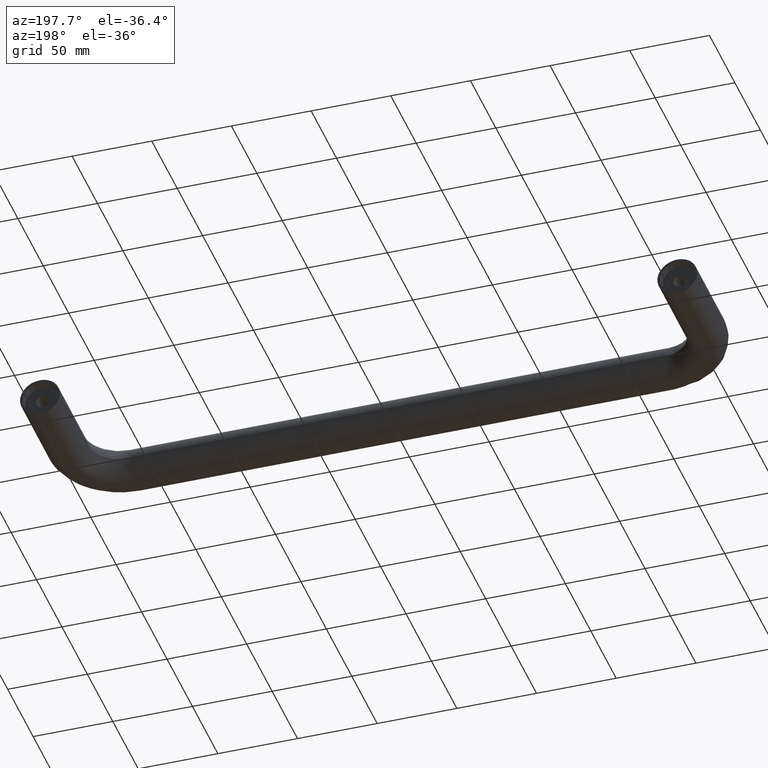
[diagram: clean part render]
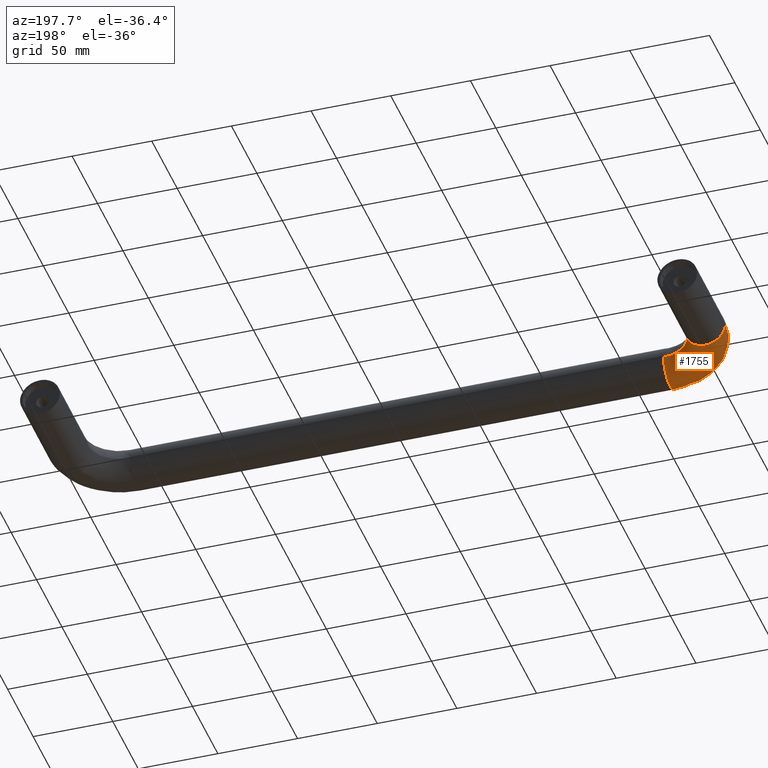
[diagram: same view with one face highlighted and labeled with its STEP entity id]
A machine part, auxiliary view. The second image highlights one B-rep face of the part: STEP entity #1755.
In plain terms, the highlighted face is a freeform B-spline surface patch.
Its self-contained STEP definition (entity closure, byte-faithful):
#1326=CARTESIAN_POINT('',(32.500032146005097,-99.999999999977035,-1.530758E-015));
#1327=VERTEX_POINT('',#1326);
#1341=CARTESIAN_POINT('',(32.500017053687827,-88.263108096102428,-12.476684897586050));
#1342=VERTEX_POINT('',#1341);
#1343=CARTESIAN_POINT('',(32.500032146005097,-99.999999999977035,-1.530758E-015));
#1344=CARTESIAN_POINT('',(32.500032146005104,-99.999999999977021,-11.758824559796043));
#1345=CARTESIAN_POINT('',(32.500017053686584,-88.263108096102414,-12.476684897585754));
#1353=(BOUNDED_CURVE()B_SPLINE_CURVE(2,(#1343,#1344,#1345),.UNSPECIFIED.,.F.,.U.)B_SPLINE_CURVE_WITH_KNOTS((3,3),(0.0,0.319110591393889),.UNSPECIFIED.)CURVE()GEOMETRIC_REPRESENTATION_ITEM()RATIONAL_B_SPLINE_CURVE((1.0,0.719604015187538,0.976072001602936))REPRESENTATION_ITEM(''));
#1354=EDGE_CURVE('',#1327,#1342,#1353,.T.);
#1387=CARTESIAN_POINT('',(32.499999998826283,-75.0,-8.821372E-016));
#1388=VERTEX_POINT('',#1387);
#1389=CARTESIAN_POINT('',(32.500017053687834,-88.263108096102428,-12.476684897586050));
#1390=CARTESIAN_POINT('',(32.500016563509135,-87.881910219080311,-12.500000000000005));
#1391=CARTESIAN_POINT('',(32.500016072415690,-87.499999999988518,-12.500000000000000));
#1392=CARTESIAN_POINT('',(32.499999998826283,-75.0,-12.499999999999998));
#1393=CARTESIAN_POINT('',(32.499999998826283,-75.0,-8.821372E-016));
#1401=(BOUNDED_CURVE()B_SPLINE_CURVE(2,(#1389,#1390,#1391,#1392,#1393),.UNSPECIFIED.,.F.,.U.)B_SPLINE_CURVE_WITH_KNOTS((3,2,3),(0.319110591393889,0.333333333333333,0.666666666666667),.UNSPECIFIED.)CURVE()GEOMETRIC_REPRESENTATION_ITEM()RATIONAL_B_SPLINE_CURVE((0.976072001602936,0.987502765999009,1.0,0.707106781186547,1.0))REPRESENTATION_ITEM(''));
#1402=EDGE_CURVE('',#1342,#1388,#1401,.T.);
#1611=CARTESIAN_POINT('',(-12.499999999999989,-55.000000000835101,-1.530758E-015));
#1612=VERTEX_POINT('',#1611);
#1613=CARTESIAN_POINT('',(-12.499999999999988,-55.000000000835101,-1.530758E-015));
#1614=CARTESIAN_POINT('',(-12.499999999164881,-100.000032146010810,-1.530758E-015));
#1615=CARTESIAN_POINT('',(32.500032146005090,-99.999999999977035,-1.530758E-015));
#1623=(BOUNDED_CURVE()B_SPLINE_CURVE(2,(#1613,#1614,#1615),.UNSPECIFIED.,.F.,.U.)B_SPLINE_CURVE_WITH_KNOTS((3,3),(-1.744561813296049,-0.255437434489628),.UNSPECIFIED.)CURVE()GEOMETRIC_REPRESENTATION_ITEM()RATIONAL_B_SPLINE_CURVE((0.894678510035537,0.632633109070477,0.894678774774206))REPRESENTATION_ITEM(''));
#1624=EDGE_CURVE('',#1612,#1327,#1623,.T.);
#1629=CARTESIAN_POINT('',(12.500000000000000,-55.000000001939298,-8.821372E-016));
#1630=VERTEX_POINT('',#1629);
#1631=CARTESIAN_POINT('',(12.500000000000004,-55.000000001939298,-1.764274E-015));
#1632=CARTESIAN_POINT('',(12.500000001939290,-74.999999998826283,-1.716756E-015));
#1633=CARTESIAN_POINT('',(32.499999998826276,-75.0,-1.764274E-015));
#1641=(BOUNDED_CURVE()B_SPLINE_CURVE(2,(#1631,#1632,#1633),.UNSPECIFIED.,.F.,.U.)B_SPLINE_CURVE_WITH_KNOTS((3,3),(-1.744561813213490,-0.255438186746204),.UNSPECIFIED.)CURVE()GEOMETRIC_REPRESENTATION_ITEM()RATIONAL_B_SPLINE_CURVE((0.894678510006481,0.632633241461709,0.894678510020666))REPRESENTATION_ITEM(''));
#1642=EDGE_CURVE('',#1630,#1388,#1641,.T.);
#1690=CARTESIAN_POINT('',(12.548412753459832,-53.609256909528014,0.349459221148219));
#1691=CARTESIAN_POINT('',(10.949254891925483,-76.550760494180025,0.349459221148219));
#1692=CARTESIAN_POINT('',(33.890757334856950,-74.951586253617577,0.349459221148219));
#1693=CARTESIAN_POINT('',(12.548412753459838,-53.609256909528021,0.175747192080912));
#1694=CARTESIAN_POINT('',(10.949254891925483,-76.550760494180039,0.175747192080911));
#1695=CARTESIAN_POINT('',(33.890757334856950,-74.951586253617577,0.175747192080911));
#1696=CARTESIAN_POINT('',(12.548412753459827,-53.609256909528014,-12.499999999999998));
#1697=CARTESIAN_POINT('',(10.949254891925481,-76.550760494180039,-12.499999999999998));
#1698=CARTESIAN_POINT('',(33.890757334856943,-74.951586253617549,-12.499999999999996));
#1699=CARTESIAN_POINT('',(0.078670724372227,-52.740042477983032,-12.499999999999991));
#1700=CARTESIAN_POINT('',(-2.519960800621087,-90.019985803042573,-12.499999999999996));
#1701=CARTESIAN_POINT('',(34.759980669142557,-87.421327662128547,-12.499999999999998));
#1702=CARTESIAN_POINT('',(-12.391071304715377,-51.870828046438028,-12.499999999999993));
#1703=CARTESIAN_POINT('',(-15.989176493167658,-103.489211111905110,-12.499999999999993));
#1704=CARTESIAN_POINT('',(35.629204003428143,-99.891069070639503,-12.499999999999993));
#1705=CARTESIAN_POINT('',(-12.391071304715366,-51.870828046438035,0.175747192080917));
#1706=CARTESIAN_POINT('',(-15.989176493167648,-103.489211111905060,0.175747192080917));
#1707=CARTESIAN_POINT('',(35.629204003428136,-99.891069070639503,0.175747192080917));
#1708=CARTESIAN_POINT('',(-12.391071304715364,-51.870828046438035,0.349459221148228));
#1709=CARTESIAN_POINT('',(-15.989176493167653,-103.489211111905080,0.349459221148228));
#1710=CARTESIAN_POINT('',(35.629204003428121,-99.891069070639517,0.349459221148228));
#1718=(BOUNDED_SURFACE()B_SPLINE_SURFACE(2,2,((#1690,#1693,#1696,#1699,#1702,#1705,#1708),(#1691,#1694,#1697,#1700,#1703,#1706,#1709),(#1692,#1695,#1698,#1701,#1704,#1707,#1710)),.UNSPECIFIED.,.F.,.F.,.U.)B_SPLINE_SURFACE_WITH_KNOTS((3,3),(3,1,2,1,3),(0.0,82.006869766113837),(0.0,0.414213562373086,21.124891681027840,41.835569799682602,42.249783362055702),.UNSPECIFIED.)GEOMETRIC_REPRESENTATION_ITEM()RATIONAL_B_SPLINE_SURFACE(((0.932968273742706,0.927566359489889,0.652068732596265,0.922164445237073,0.652068732596265,0.927566359489890,0.932968273742706),(0.612236896200183,0.608692026231115,0.427903657808649,0.605147156262047,0.427903657808649,0.608692026231115,0.612236896200183),(0.932968577209332,0.927566661199436,0.652068944694688,0.922164745189539,0.652068944694688,0.927566661199436,0.932968577209333)))REPRESENTATION_ITEM('')SURFACE());
#1719=ORIENTED_EDGE('',*,*,#1624,.F.);
#1720=CARTESIAN_POINT('',(8.604431086050433,-55.000000001767198,-9.067180691119297));
#1721=VERTEX_POINT('',#1720);
#1722=CARTESIAN_POINT('',(-12.499999999999989,-55.000000000835101,-1.530758E-015));
#1723=CARTESIAN_POINT('',(-12.499999999999989,-55.000000000835094,-12.500000000000002));
#1724=CARTESIAN_POINT('',(6.217249E-015,-55.000000001387200,-12.500000000000000));
#1725=CARTESIAN_POINT('',(4.986993437668882,-55.000000001607461,-12.500000000000000));
#1726=CARTESIAN_POINT('',(8.604431086050500,-55.000000001767226,-9.067180691119367));
#1734=(BOUNDED_CURVE()B_SPLINE_CURVE(2,(#1722,#1723,#1724,#1725,#1726),.UNSPECIFIED.,.F.,.U.)B_SPLINE_CURVE_WITH_KNOTS((3,2,3),(0.0,0.333333333333333,0.494732677576276),.UNSPECIFIED.)CURVE()GEOMETRIC_REPRESENTATION_ITEM()RATIONAL_B_SPLINE_CURVE((1.0,0.707106781186547,1.0,0.858181679650912,0.853699662737694))REPRESENTATION_ITEM(''));
#1735=EDGE_CURVE('',#1612,#1721,#1734,.T.);
#1736=ORIENTED_EDGE('',*,*,#1735,.T.);
#1737=CARTESIAN_POINT('',(8.604431086050500,-55.000000001767226,-9.067180691119367));
#1738=CARTESIAN_POINT('',(12.499999999999998,-55.000000001939291,-5.370424731037020));
#1739=CARTESIAN_POINT('',(12.500000000000000,-55.000000001939298,-8.821372E-016));
#1747=(BOUNDED_CURVE()B_SPLINE_CURVE(2,(#1737,#1738,#1739),.UNSPECIFIED.,.F.,.U.)B_SPLINE_CURVE_WITH_KNOTS((3,3),(0.494732677576276,0.666666666666667),.UNSPECIFIED.)CURVE()GEOMETRIC_REPRESENTATION_ITEM()RATIONAL_B_SPLINE_CURVE((0.853699662737694,0.848925101535635,1.0))REPRESENTATION_ITEM(''));
#1748=EDGE_CURVE('',#1721,#1630,#1747,.T.);
#1749=ORIENTED_EDGE('',*,*,#1748,.T.);
#1750=ORIENTED_EDGE('',*,*,#1642,.T.);
#1751=ORIENTED_EDGE('',*,*,#1402,.F.);
#1752=ORIENTED_EDGE('',*,*,#1354,.F.);
#1753=EDGE_LOOP('',(#1719,#1736,#1749,#1750,#1751,#1752));
#1754=FACE_OUTER_BOUND('',#1753,.T.);
#1755=ADVANCED_FACE('',(#1754),#1718,.T.);